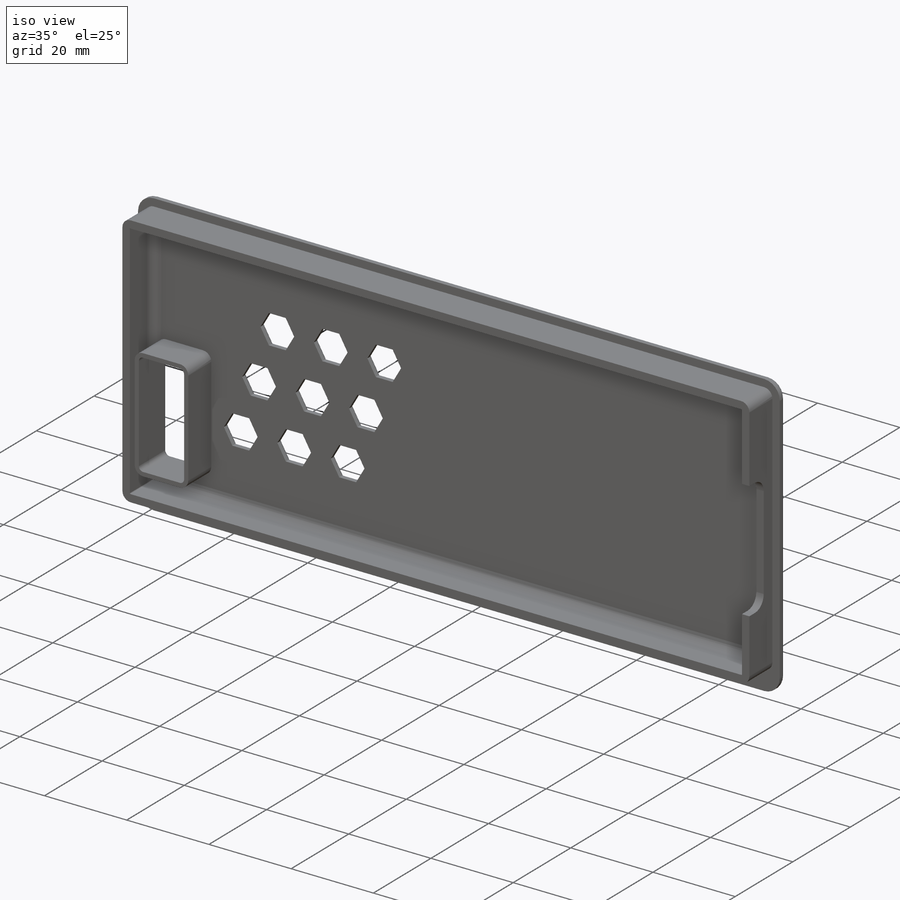
[diagram: iso view]
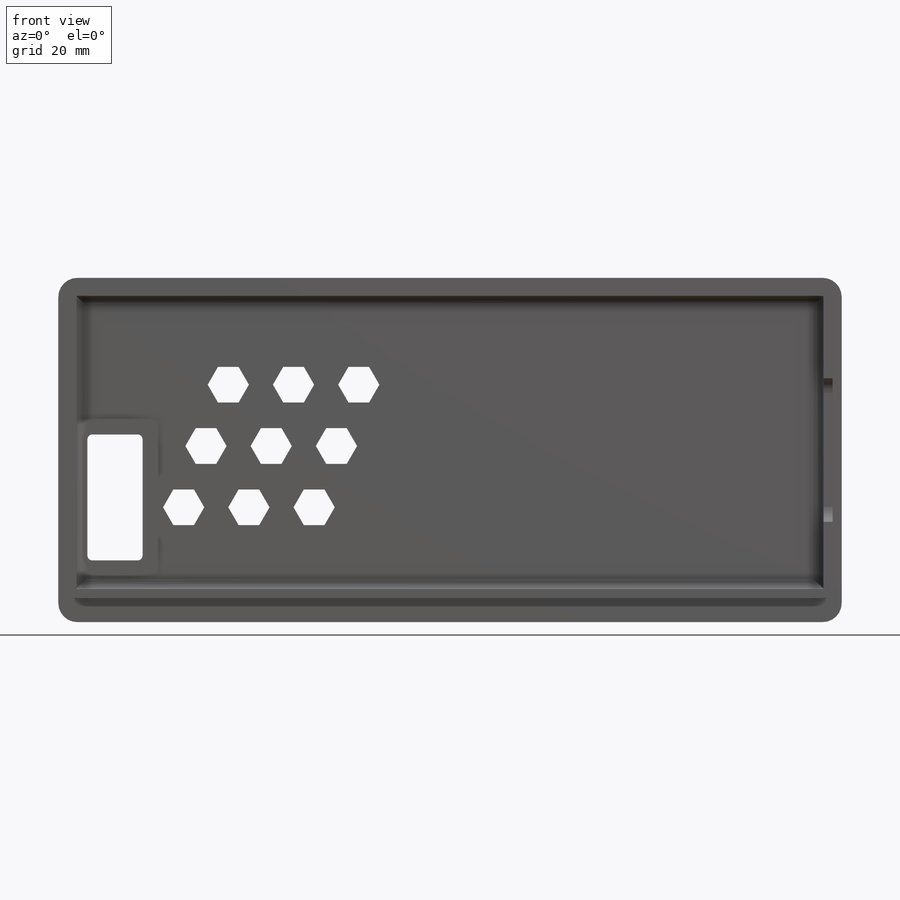
[diagram: front view]
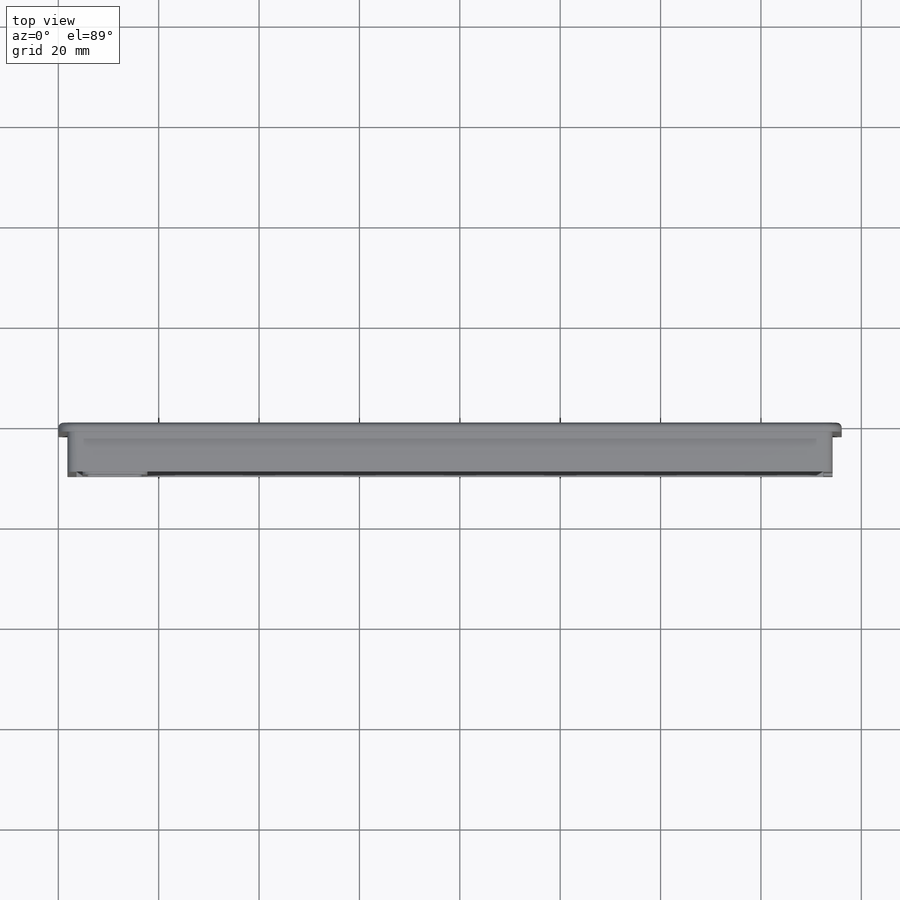
[diagram: top view]
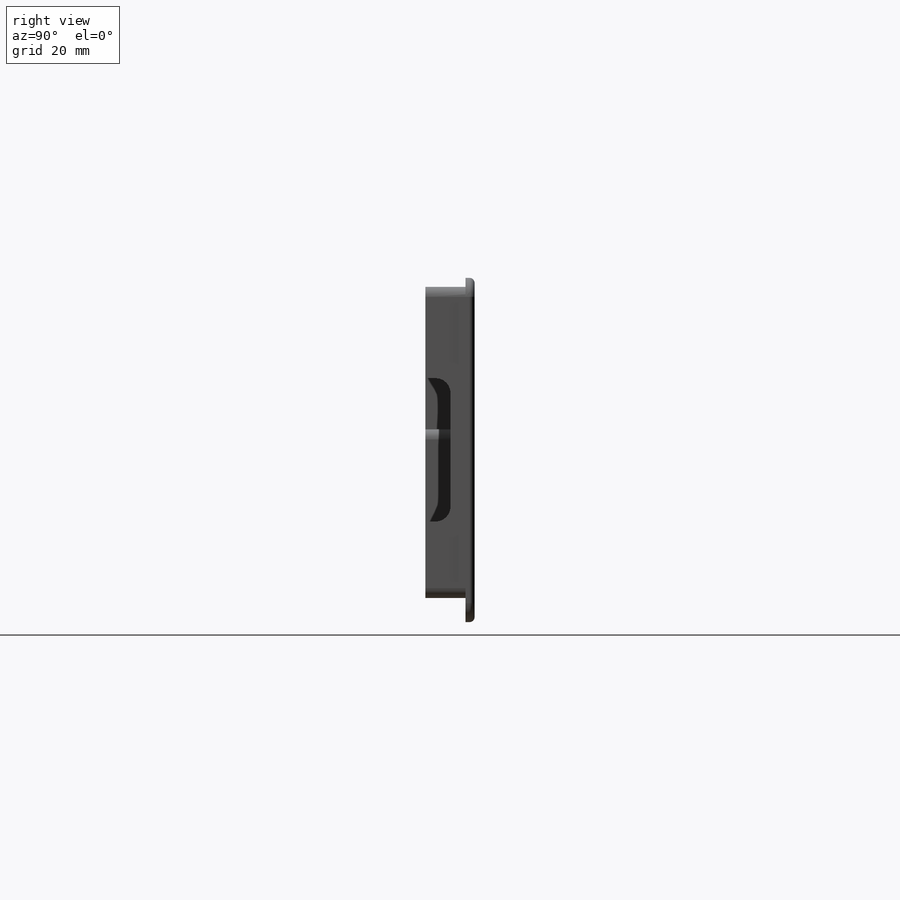
[diagram: right view]
SOLIDWORKS PART (.sldprt)
format: sldprt  version: not decoded by parser v0  size: 609,792 bytes
history: native  units: mm
features: fillet x10, sketch x6, extrude x3, cut_extrude x3, material x1 (+12 scaffold rows collapsed)
feature tree (35):
  scaffold x12  (default folders/planes/origin — collapsed)
  material  "Material <not specified>"
  sketch  "Sketch1"  dims[D1=156.1mm D2=68.6mm]
  extrude  "Boss-Extrude1"  Depth=1.8mm
  sketch  "Sketch2"  dims[D2=1.8mm D3=1.8mm D4=4.8mm D5=1.8mm D1=1.8mm]
  extrude  "Boss-Extrude2"  Depth=8mm
  fillet  "Fillet1"  Radius=2mm
  fillet  "Fillet3"  Radius=0.2mm
  fillet  "Fillet4"  Radius=3.8mm
  sketch  "Sketch3"  dims[D1=20.0mm D2=20.0mm]
  cut_extrude  "Cut-Extrude1"  Depth=5mm
  fillet  "Fillet5"  Radius=3mm
  sketch  "Sketch4"  dims[D1=25.1mm D2=11.0mm D3=56.3mm D4=16.8mm]
  cut_extrude  "Cut-Extrude2"  Depth=5mm
  sketch  "Sketch5"  dims[D1=1.0mm]
  extrude  "Boss-Extrude3"  Depth=8mm
  fillet  "Fillet6"  Radius=1mm
  fillet  "Fillet7"  Radius=2mm
  sketch  "Sketch6"  dims[D1=3.0 D2=3.0]
  cut_extrude  "Cut-Extrude3"  Depth=8mm
  fillet  "Fillet8"  Radius=1mm
  fillet  "Fillet9"  Radius=1mm
  fillet  "Fillet10"  Radius=1mm
  fillet  "Fillet11"  Radius=2mm
decode coverage: 22 of 22 modeling features carry decoded parameters
note: suppression state not decoded; provenance and decode notes live in map.json
